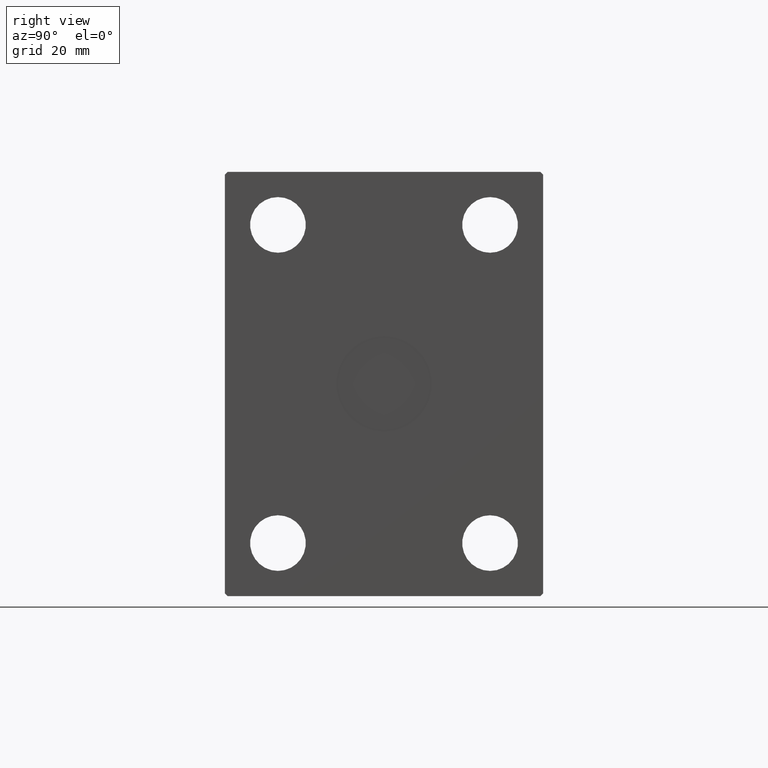
[diagram: clean part render]
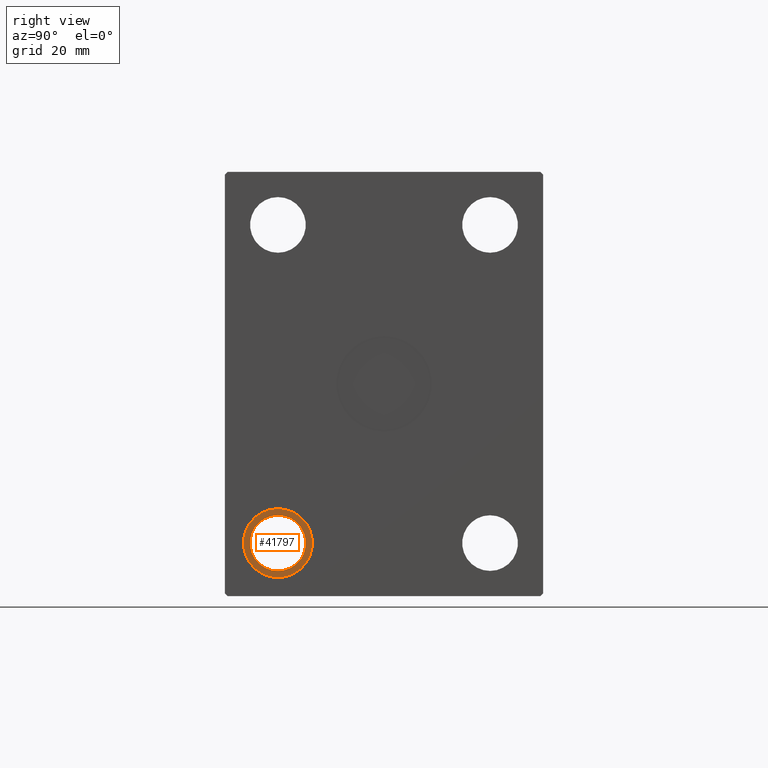
[diagram: same view with one face highlighted and labeled with its STEP entity id]
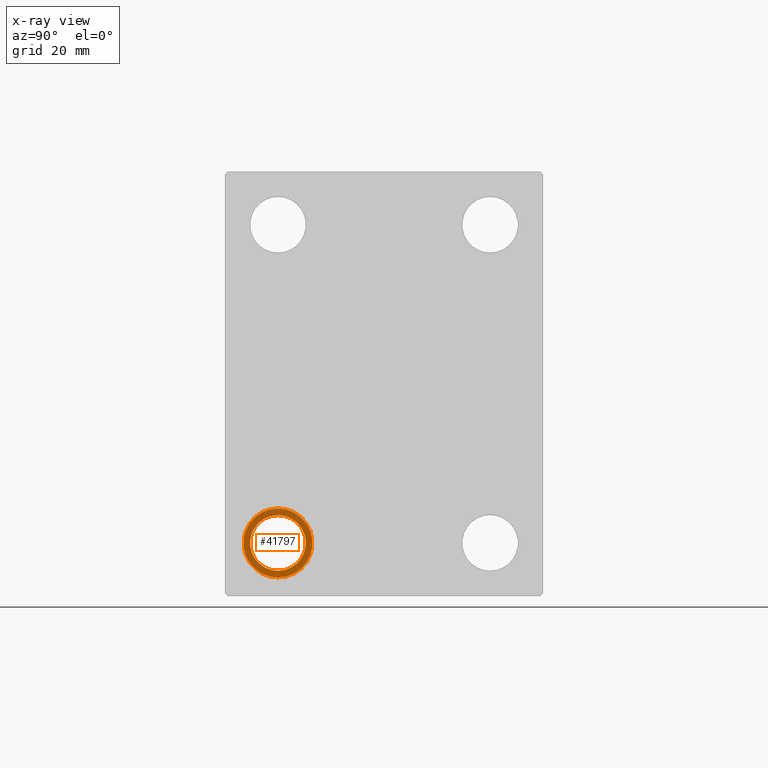
[diagram: x-ray of the same camera — body ghosted, the highlighted face saturated]
A machine part, right view. The second image highlights one B-rep face of the part: STEP entity #41797.
The next image is the same camera in x-ray: the body ghosted, the highlighted face saturated — about 0% of this face is hidden behind the body in this view.
In plain terms, the highlighted planar face has unit normal (-1, 0, 0).
Its self-contained STEP definition (entity closure, byte-faithful):
#2292 = DIRECTION ( 'NONE',  ( -1.000000000000000000, 0.000000000000000000, 0.000000000000000000 ) ) ;
#2684 = ORIENTED_EDGE ( 'NONE', *, *, #27873, .T. ) ;
#3336 = EDGE_CURVE ( 'NONE', #26118, #12063, #35088, .T. ) ;
#4005 = CARTESIAN_POINT ( 'NONE',  ( 179.6699999999999875, -39.99999999999999289, -47.00000000000000000 ) ) ;
#4818 = CARTESIAN_POINT ( 'NONE',  ( 179.6699999999999875, -39.99999999999999289, -59.99999999999999289 ) ) ;
#6577 = DIRECTION ( 'NONE',  ( 1.000000000000000000, -0.000000000000000000, -0.000000000000000000 ) ) ;
#8099 = FACE_BOUND ( 'NONE', #12548, .T. ) ;
#8746 = PLANE ( 'NONE',  #26633 ) ;
#11719 = VERTEX_POINT ( 'NONE', #23671 ) ;
#11912 = ORIENTED_EDGE ( 'NONE', *, *, #3336, .T. ) ;
#12063 = VERTEX_POINT ( 'NONE', #4005 ) ;
#12548 = EDGE_LOOP ( 'NONE', ( #25648, #39171 ) ) ;
#12884 = EDGE_CURVE ( 'NONE', #11719, #36047, #31196, .T. ) ;
#18822 = CARTESIAN_POINT ( 'NONE',  ( 179.6699999999999875, -39.99999999999999289, -59.99999999999999289 ) ) ;
#20253 = CIRCLE ( 'NONE', #40150, 12.99999999999999112 ) ;
#20446 = EDGE_LOOP ( 'NONE', ( #11912, #2684 ) ) ;
#21593 = CARTESIAN_POINT ( 'NONE',  ( 179.6699999999999875, -39.99999999999999289, -59.99999999999999289 ) ) ;
#21814 = DIRECTION ( 'NONE',  ( -1.000000000000000000, 0.000000000000000000, 0.000000000000000000 ) ) ;
#23671 = CARTESIAN_POINT ( 'NONE',  ( 179.6699999999999875, -39.99999999999999289, -70.50000000000000000 ) ) ;
#23932 = DIRECTION ( 'NONE',  ( 1.000000000000000000, -0.000000000000000000, -0.000000000000000000 ) ) ;
#24336 = AXIS2_PLACEMENT_3D ( 'NONE', #21593, #21814, #25449 ) ;
#24402 = FACE_OUTER_BOUND ( 'NONE', #20446, .T. ) ;
#25449 = DIRECTION ( 'NONE',  ( 0.000000000000000000, 0.000000000000000000, 1.000000000000000000 ) ) ;
#25648 = ORIENTED_EDGE ( 'NONE', *, *, #38574, .T. ) ;
#26118 = VERTEX_POINT ( 'NONE', #29680 ) ;
#26123 = DIRECTION ( 'NONE',  ( 0.000000000000000000, 0.000000000000000000, 1.000000000000000000 ) ) ;
#26633 = AXIS2_PLACEMENT_3D ( 'NONE', #31293, #2292, #28075 ) ;
#26671 = AXIS2_PLACEMENT_3D ( 'NONE', #39217, #39011, #26123 ) ;
#27873 = EDGE_CURVE ( 'NONE', #12063, #26118, #20253, .T. ) ;
#28075 = DIRECTION ( 'NONE',  ( 0.000000000000000000, 0.000000000000000000, -1.000000000000000000 ) ) ;
#29400 = CIRCLE ( 'NONE', #26671, 10.50000000000000178 ) ;
#29680 = CARTESIAN_POINT ( 'NONE',  ( 179.6699999999999875, -39.99999999999999289, -72.99999999999998579 ) ) ;
#29852 = CARTESIAN_POINT ( 'NONE',  ( 179.6699999999999875, -39.99999999999999289, -49.49999999999998579 ) ) ;
#30597 = DIRECTION ( 'NONE',  ( 0.000000000000000000, 0.000000000000000000, -1.000000000000000000 ) ) ;
#31196 = CIRCLE ( 'NONE', #24336, 10.50000000000000178 ) ;
#31293 = CARTESIAN_POINT ( 'NONE',  ( 179.6699999999999875, -39.99999999999999289, -59.99999999999999289 ) ) ;
#35088 = CIRCLE ( 'NONE', #39897, 12.99999999999999112 ) ;
#35565 = DIRECTION ( 'NONE',  ( 0.000000000000000000, 0.000000000000000000, -1.000000000000000000 ) ) ;
#36047 = VERTEX_POINT ( 'NONE', #29852 ) ;
#38574 = EDGE_CURVE ( 'NONE', #36047, #11719, #29400, .T. ) ;
#39011 = DIRECTION ( 'NONE',  ( -1.000000000000000000, 0.000000000000000000, 0.000000000000000000 ) ) ;
#39171 = ORIENTED_EDGE ( 'NONE', *, *, #12884, .T. ) ;
#39217 = CARTESIAN_POINT ( 'NONE',  ( 179.6699999999999875, -39.99999999999999289, -59.99999999999999289 ) ) ;
#39897 = AXIS2_PLACEMENT_3D ( 'NONE', #18822, #6577, #35565 ) ;
#40150 = AXIS2_PLACEMENT_3D ( 'NONE', #4818, #23932, #30597 ) ;
#41797 = ADVANCED_FACE ( 'NONE', ( #8099, #24402 ), #8746, .F. ) ;